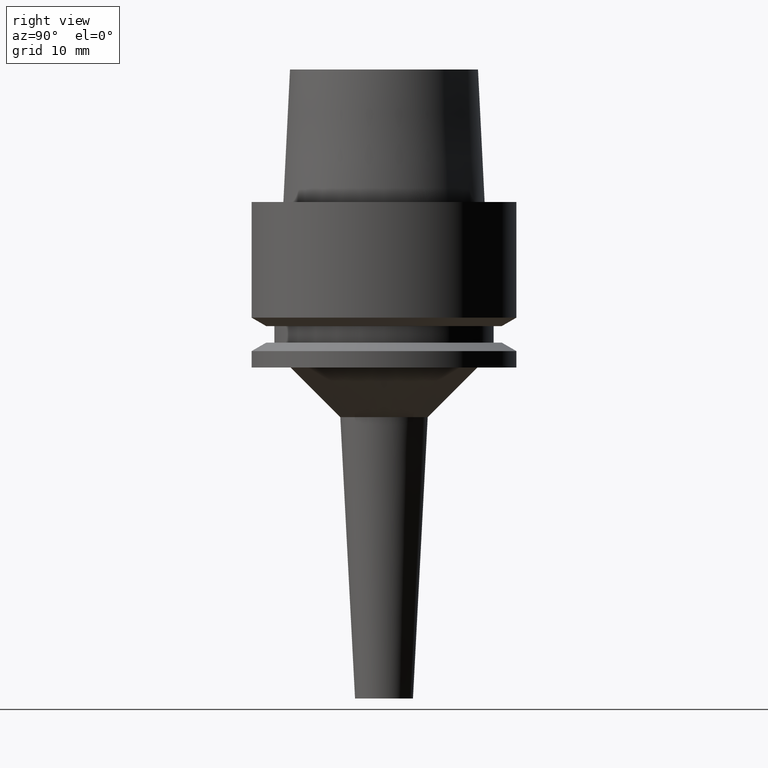
[diagram: clean part render]
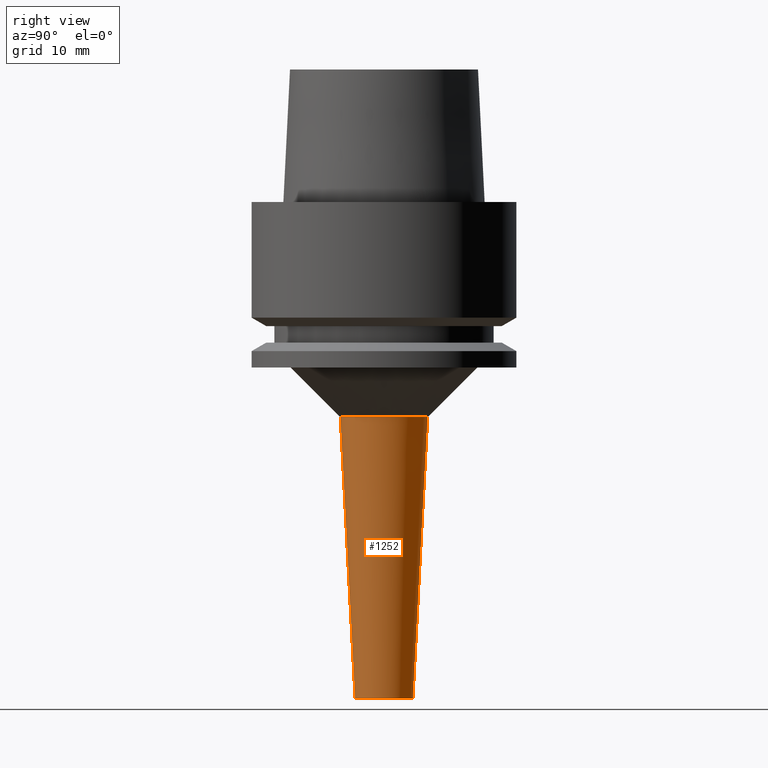
[diagram: same view with one face highlighted and labeled with its STEP entity id]
A machine part, right view. The second image highlights one B-rep face of the part: STEP entity #1252.
In plain terms, the highlighted conical surface has half-angle 3 deg.
Its self-contained STEP definition (entity closure, byte-faithful):
#414=CARTESIAN_POINT('',(0.E0,0.E0,-6.E1));
#415=DIRECTION('',(0.E0,0.E0,1.E0));
#416=DIRECTION('',(0.E0,-1.E0,0.E0));
#417=AXIS2_PLACEMENT_3D('',#414,#415,#416);
#446=DIRECTION('',(0.E0,-5.233595624294E-2,-9.986295347546E-1));
#447=VECTOR('',#446,3.404665976393E1);
#448=CARTESIAN_POINT('',(0.E0,5.281864495623E0,-2.6E1));
#449=LINE('',#448,#447);
#453=CARTESIAN_POINT('',(0.E0,0.E0,-2.6E1));
#454=DIRECTION('',(0.E0,0.E0,1.E0));
#455=DIRECTION('',(0.E0,-1.E0,0.E0));
#456=AXIS2_PLACEMENT_3D('',#453,#454,#455);
#461=DIRECTION('',(0.E0,5.233595624294E-2,-9.986295347546E-1));
#462=VECTOR('',#461,3.404665976393E1);
#463=CARTESIAN_POINT('',(0.E0,-5.281864495623E0,-2.6E1));
#464=LINE('',#463,#462);
#788=CARTESIAN_POINT('',(0.E0,-3.5E0,-6.E1));
#789=CARTESIAN_POINT('',(0.E0,3.5E0,-6.E1));
#790=VERTEX_POINT('',#788);
#791=VERTEX_POINT('',#789);
#792=CARTESIAN_POINT('',(0.E0,5.281864495623E0,-2.6E1));
#793=VERTEX_POINT('',#792);
#794=CARTESIAN_POINT('',(0.E0,-5.281864495623E0,-2.6E1));
#795=VERTEX_POINT('',#794);
#1238=CARTESIAN_POINT('',(0.E0,0.E0,-4.3E1));
#1239=DIRECTION('',(0.E0,0.E0,1.E0));
#1240=DIRECTION('',(0.E0,1.E0,0.E0));
#1241=AXIS2_PLACEMENT_3D('',#1238,#1239,#1240);
#1242=CONICAL_SURFACE('',#1241,4.390932247812E0,3.E0);
#1244=ORIENTED_EDGE('',*,*,#1243,.T.);
#1245=ORIENTED_EDGE('',*,*,#1227,.F.);
#1247=ORIENTED_EDGE('',*,*,#1246,.F.);
#1249=ORIENTED_EDGE('',*,*,#1248,.T.);
#1250=EDGE_LOOP('',(#1244,#1245,#1247,#1249));
#1251=FACE_OUTER_BOUND('',#1250,.F.);
#418=CIRCLE('',#417,3.5E0);
#457=CIRCLE('',#456,5.281864495624E0);
#1227=EDGE_CURVE('',#790,#791,#418,.T.);
#1243=EDGE_CURVE('',#793,#791,#449,.T.);
#1246=EDGE_CURVE('',#795,#790,#464,.T.);
#1248=EDGE_CURVE('',#795,#793,#457,.T.);
#1252=ADVANCED_FACE('',(#1251),#1242,.T.);